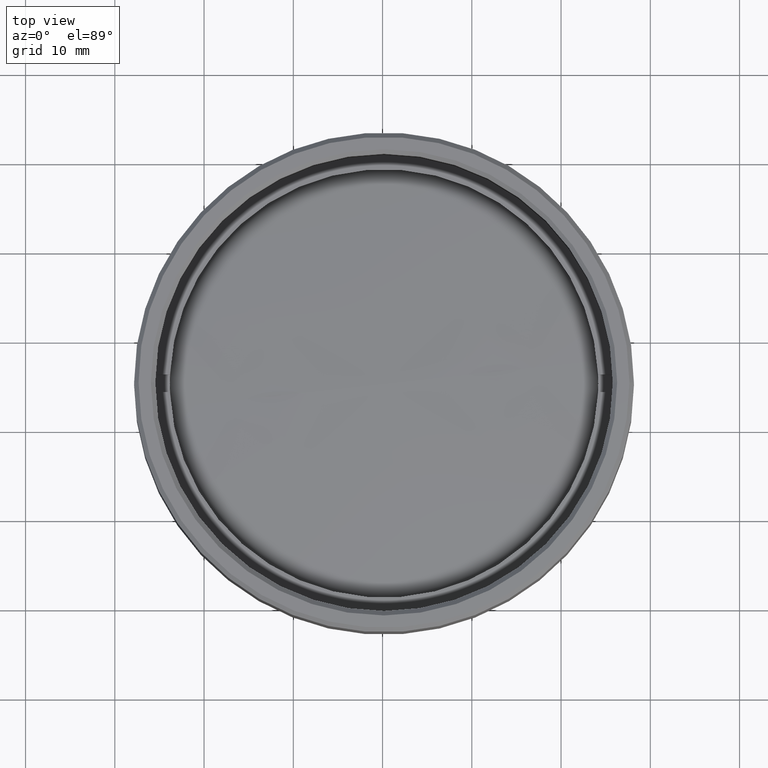
[diagram: clean part render]
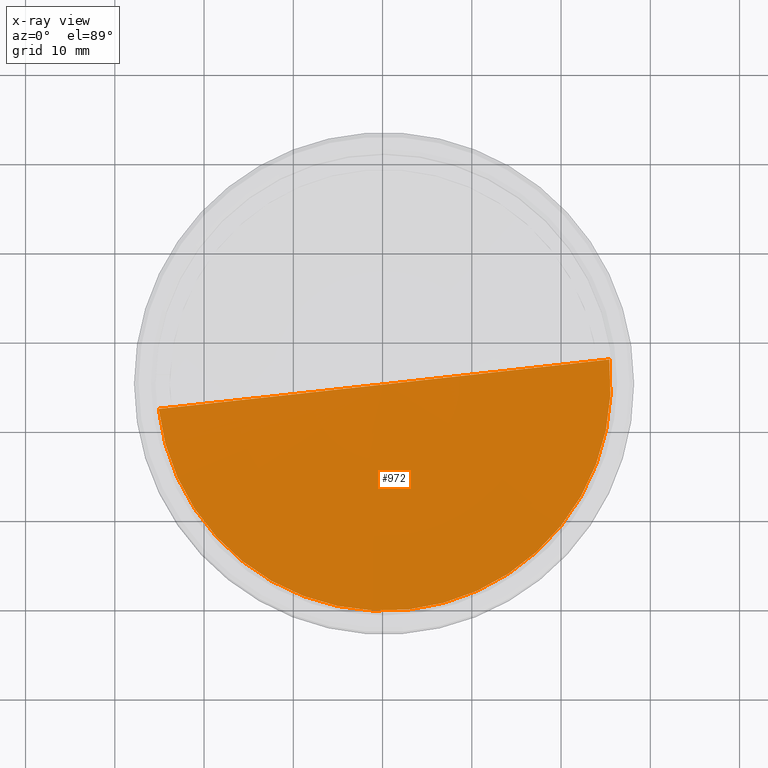
[diagram: x-ray — body ghosted, one internal face saturated and labeled with its STEP entity id]
A machine part, top view, then the same camera in x-ray: the body is ghosted and one INTERNAL B-rep face — a face not visible from any outside direction — is saturated and labeled: STEP entity #972.
In plain terms, the highlighted spherical surface has radius 243.3 mm.
Its self-contained STEP definition (entity closure, byte-faithful):
#49 = CIRCLE ( 'NONE', #1721, 25.39999999999999858 ) ;
#84 = EDGE_CURVE ( 'NONE', #1144, #1475, #49, .T. ) ;
#97 = DIRECTION ( 'NONE',  ( 0.000000000000000000, 1.000000000000000000, 0.000000000000000000 ) ) ;
#208 = DIRECTION ( 'NONE',  ( -0.000000000000000000, -0.000000000000000000, -1.000000000000000000 ) ) ;
#252 = ORIENTED_EDGE ( 'NONE', *, *, #923, .T. ) ;
#491 = DIRECTION ( 'NONE',  ( -1.000000000000000000, 0.000000000000000000, 0.000000000000000000 ) ) ;
#757 = AXIS2_PLACEMENT_3D ( 'NONE', #1592, #97, #1294 ) ;
#771 = FACE_OUTER_BOUND ( 'NONE', #1289, .T. ) ;
#923 = EDGE_CURVE ( 'NONE', #1475, #1144, #1304, .T. ) ;
#924 = ORIENTED_EDGE ( 'NONE', *, *, #84, .T. ) ;
#927 = CARTESIAN_POINT ( 'NONE',  ( 25.39999999999999858, -3.110602869834290276E-15, -3.670514732683899606 ) ) ;
#972 = ADVANCED_FACE ( 'NONE', ( #771 ), #1458, .F. ) ;
#1144 = VERTEX_POINT ( 'NONE', #1598 ) ;
#1289 = EDGE_LOOP ( 'NONE', ( #924, #252 ) ) ;
#1294 = DIRECTION ( 'NONE',  ( 0.000000000000000000, 0.000000000000000000, 1.000000000000000000 ) ) ;
#1304 = CIRCLE ( 'NONE', #757, 243.3000000000000114 ) ;
#1306 = AXIS2_PLACEMENT_3D ( 'NONE', #1709, #208, #491 ) ;
#1368 = DIRECTION ( 'NONE',  ( 1.000000000000000000, 0.000000000000000000, 0.000000000000000000 ) ) ;
#1392 = DIRECTION ( 'NONE',  ( 0.000000000000000000, 0.000000000000000000, 1.000000000000000000 ) ) ;
#1458 = SPHERICAL_SURFACE ( 'NONE', #1306, 243.2999999999999829 ) ;
#1475 = VERTEX_POINT ( 'NONE', #927 ) ;
#1592 = CARTESIAN_POINT ( 'NONE',  ( 0.000000000000000000, 0.000000000000000000, 238.3000000000000114 ) ) ;
#1598 = CARTESIAN_POINT ( 'NONE',  ( -25.39999999999999858, 0.000000000000000000, -3.670514732683899606 ) ) ;
#1646 = CARTESIAN_POINT ( 'NONE',  ( 0.000000000000000000, 0.000000000000000000, -3.670514732683899606 ) ) ;
#1709 = CARTESIAN_POINT ( 'NONE',  ( 0.000000000000000000, 0.000000000000000000, 238.3000000000000114 ) ) ;
#1721 = AXIS2_PLACEMENT_3D ( 'NONE', #1646, #1392, #1368 ) ;